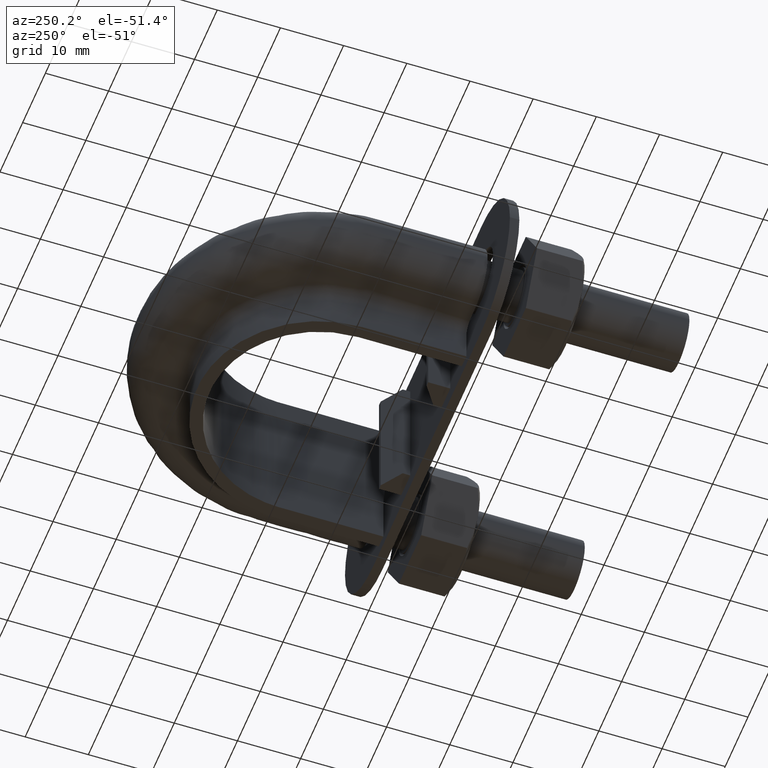
[diagram: clean part render]
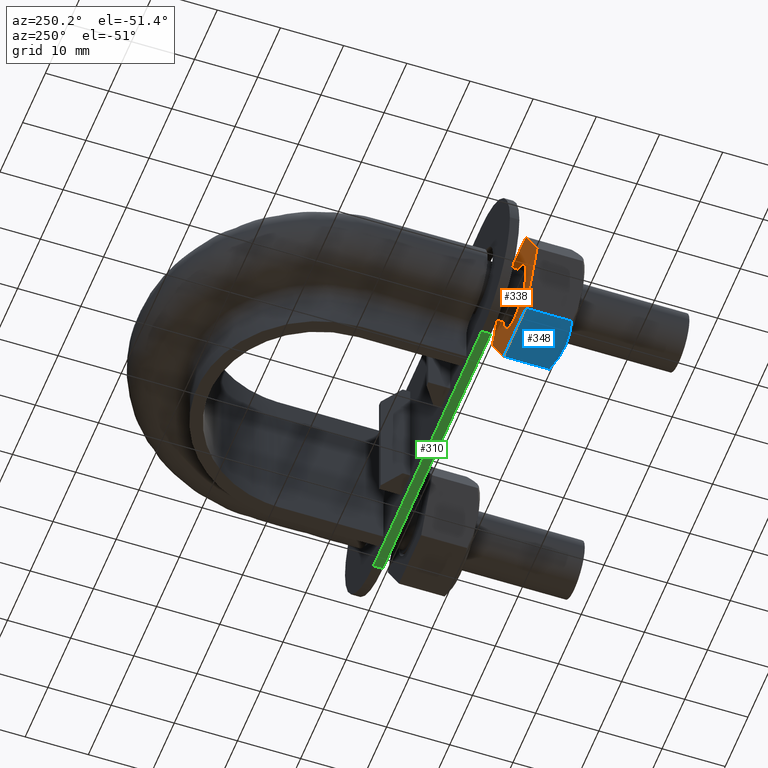
[diagram: same view with three faces highlighted in distinct colors, each labeled with its STEP entity id]
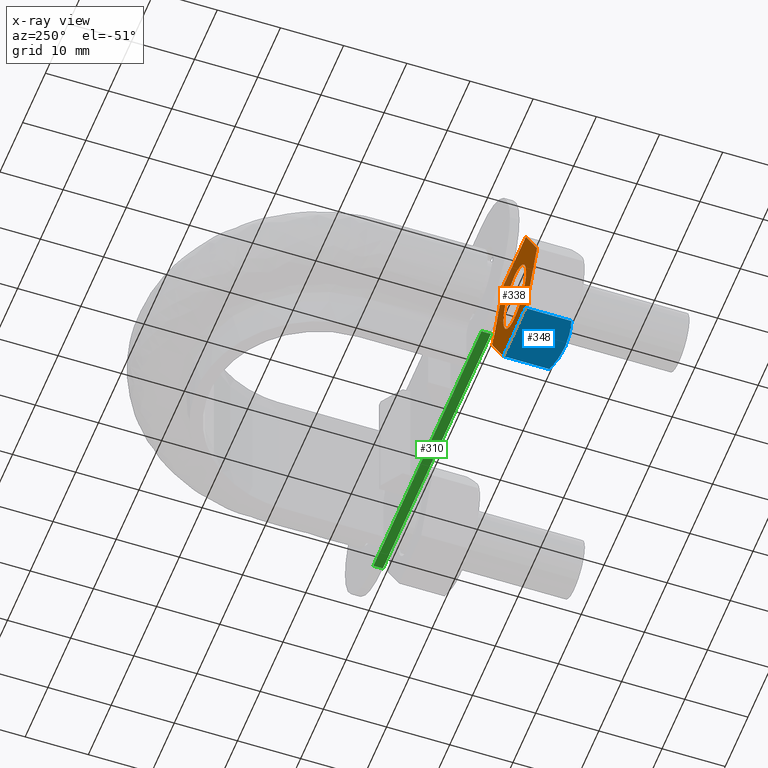
[diagram: x-ray of the same camera — body ghosted, the three highlighted faces saturated]
A machine part, auxiliary view with three faces highlighted in distinct colors.
The next image is the same camera in x-ray (body ghosted, the three faces saturated) — at least one of them is partly hidden behind the body in this view.
Their STEP definitions:

[orange] entity #338 — the highlighted planar face has unit normal (-0, -1, -0).
#338 = ADVANCED_FACE( '', ( #545, #546 ), #547, .F. );
#545 = FACE_BOUND( '', #1627, .T. );
#546 = FACE_OUTER_BOUND( '', #1628, .T. );
#547 = PLANE( '', #1629 );
#1627 = EDGE_LOOP( '', ( #2231 ) );
#1628 = EDGE_LOOP( '', ( #2232, #2233, #2234, #2235, #2236, #2237, #2238, #2239, #2240, #2241, #2242, #2243 ) );
#1629 = AXIS2_PLACEMENT_3D( '', #2244, #2245, #2246 );
#2231 = ORIENTED_EDGE( '', *, *, #2697, .F. );
#2232 = ORIENTED_EDGE( '', *, *, #2698, .T. );
#2233 = ORIENTED_EDGE( '', *, *, #2699, .T. );
#2234 = ORIENTED_EDGE( '', *, *, #2700, .T. );
#2235 = ORIENTED_EDGE( '', *, *, #2693, .T. );
#2236 = ORIENTED_EDGE( '', *, *, #2701, .T. );
#2237 = ORIENTED_EDGE( '', *, *, #2702, .T. );
#2238 = ORIENTED_EDGE( '', *, *, #2703, .T. );
#2239 = ORIENTED_EDGE( '', *, *, #2704, .T. );
#2240 = ORIENTED_EDGE( '', *, *, #2705, .T. );
#2241 = ORIENTED_EDGE( '', *, *, #2706, .T. );
#2242 = ORIENTED_EDGE( '', *, *, #2707, .T. );
#2243 = ORIENTED_EDGE( '', *, *, #2708, .T. );
#2244 = CARTESIAN_POINT( '', ( -32.7999999999996, 26.0000000000000, 8.18610159412095E-010 ) );
#2245 = DIRECTION( '', ( -2.44921270764475E-016, -1.00000000000000, -3.06151588455594E-016 ) );
#2246 = DIRECTION( '', ( 8.35309044156739E-011, -3.06151588476053E-016, 1.00000000000000 ) );
#2693 = EDGE_CURVE( '', #3034, #3032, #3035, .T. );
#2697 = EDGE_CURVE( '', #3040, #3040, #3041, .T. );
#2698 = EDGE_CURVE( '', #3042, #3043, #3044, .T. );
#2699 = EDGE_CURVE( '', #3043, #3045, #3046, .T. );
#2700 = EDGE_CURVE( '', #3045, #3034, #3047, .T. );
#2701 = EDGE_CURVE( '', #3032, #3048, #3049, .T. );
#2702 = EDGE_CURVE( '', #3048, #3050, #3051, .T. );
#2703 = EDGE_CURVE( '', #3050, #3052, #3053, .T. );
#2704 = EDGE_CURVE( '', #3052, #3054, #3055, .T. );
#2705 = EDGE_CURVE( '', #3054, #3056, #3057, .T. );
#2706 = EDGE_CURVE( '', #3056, #3058, #3059, .T. );
#2707 = EDGE_CURVE( '', #3058, #3060, #3061, .T. );
#2708 = EDGE_CURVE( '', #3060, #3042, #3062, .T. );
#3032 = VERTEX_POINT( '', #3709 );
#3034 = VERTEX_POINT( '', #3712 );
#3035 = LINE( '', #3713, #3714 );
#3040 = VERTEX_POINT( '', #3727 );
#3041 = CIRCLE( '', #3728, 5.00000000000000 );
#3042 = VERTEX_POINT( '', #3729 );
#3043 = VERTEX_POINT( '', #3730 );
#3044 = CIRCLE( '', #3731, 9.80000000000000 );
#3045 = VERTEX_POINT( '', #3732 );
#3046 = LINE( '', #3733, #3734 );
#3047 = CIRCLE( '', #3735, 9.80000000000000 );
#3048 = VERTEX_POINT( '', #3736 );
#3049 = CIRCLE( '', #3737, 9.80000000000000 );
#3050 = VERTEX_POINT( '', #3738 );
#3051 = LINE( '', #3739, #3740 );
#3052 = VERTEX_POINT( '', #3741 );
#3053 = CIRCLE( '', #3742, 9.80000000000000 );
#3054 = VERTEX_POINT( '', #3743 );
#3055 = LINE( '', #3744, #3745 );
#3056 = VERTEX_POINT( '', #3746 );
#3057 = CIRCLE( '', #3747, 9.80000000000000 );
#3058 = VERTEX_POINT( '', #3748 );
#3059 = LINE( '', #3749, #3750 );
#3060 = VERTEX_POINT( '', #3751 );
#3061 = CIRCLE( '', #3752, 9.80000000000000 );
#3062 = LINE( '', #3753, #3754 );
#3709 = CARTESIAN_POINT( '', ( -13.2000343881790, 26.0000000000000, 0.0259616470827889 ) );
#3712 = CARTESIAN_POINT( '', ( -18.0775337467760, 26.0000000000000, 8.47403835168745 ) );
#3713 = CARTESIAN_POINT( '', ( -18.0887840671230, 26.0000000000000, 8.49352447813352 ) );
#3714 = VECTOR( '', #4226, 1000.00000000001 );
#3727 = CARTESIAN_POINT( '', ( -23.0000000004177, 26.0000000000000, -4.99999999999999 ) );
#3728 = AXIS2_PLACEMENT_3D( '', #4231, #4232, #4233 );
#3729 = CARTESIAN_POINT( '', ( -27.9224662518083, 26.0000000000000, 8.47403835250981 ) );
#3730 = CARTESIAN_POINT( '', ( -27.8774993585927, 26.0000000000000, 8.50000000040743 ) );
#3731 = AXIS2_PLACEMENT_3D( '', #4234, #4235, #4236 );
#3732 = CARTESIAN_POINT( '', ( -18.1225006399873, 26.0000000000000, 8.49999999959259 ) );
#3733 = CARTESIAN_POINT( '', ( -32.7999999992896, 26.0000000000000, 8.50000000081861 ) );
#3734 = VECTOR( '', #4237, 999.999999999988 );
#3735 = AXIS2_PLACEMENT_3D( '', #4238, #4239, #4240 );
#3736 = CARTESIAN_POINT( '', ( -13.2000343881833, 26.0000000000000, -0.0259616487199740 ) );
#3737 = AXIS2_PLACEMENT_3D( '', #4241, #4242, #4243 );
#3738 = CARTESIAN_POINT( '', ( -18.0775337481917, 26.0000000000000, -8.47403835250979 ) );
#3739 = CARTESIAN_POINT( '', ( -18.0887840685419, 26.0000000000000, -8.49352447895398 ) );
#3740 = VECTOR( '', #4244, 1000.00000000001 );
#3741 = CARTESIAN_POINT( '', ( -18.1225006414073, 26.0000000000000, -8.50000000040741 ) );
#3742 = AXIS2_PLACEMENT_3D( '', #4245, #4246, #4247 );
#3743 = CARTESIAN_POINT( '', ( -27.8774993600127, 26.0000000000000, -8.49999999959257 ) );
#3744 = CARTESIAN_POINT( '', ( -32.8000000007097, 26.0000000000000, -8.49999999918139 ) );
#3745 = VECTOR( '', #4248, 999.999999999988 );
#3746 = CARTESIAN_POINT( '', ( -27.9224662532240, 26.0000000000000, -8.47403835168743 ) );
#3747 = AXIS2_PLACEMENT_3D( '', #4249, #4250, #4251 );
#3748 = CARTESIAN_POINT( '', ( -32.7999656118210, 26.0000000000000, -0.0259616470827708 ) );
#3749 = CARTESIAN_POINT( '', ( -32.8112159321679, 26.0000000000000, -0.00647552063670238 ) );
#3750 = VECTOR( '', #4252, 1000.00000000001 );
#3751 = CARTESIAN_POINT( '', ( -32.7999656118166, 26.0000000000000, 0.0259616487199859 ) );
#3752 = AXIS2_PLACEMENT_3D( '', #4253, #4254, #4255 );
#3753 = CARTESIAN_POINT( '', ( -32.8112159321668, 26.0000000000000, 0.00647552227579673 ) );
#3754 = VECTOR( '', #4256, 1000.00000000001 );
#4226 = DIRECTION( '', ( 0.499999999927647, 1.42674417659775E-016, -0.866025403826212 ) );
#4231 = CARTESIAN_POINT( '', ( -23.0000000000000, 26.0000000000000, 7.29613851974116E-015 ) );
#4232 = DIRECTION( '', ( 2.44921270764475E-016, 1.00000000000000, 3.06151588455594E-016 ) );
#4233 = DIRECTION( '', ( -8.35309044156739E-011, 3.06151588476053E-016, -1.00000000000000 ) );
#4234 = CARTESIAN_POINT( '', ( -23.0000000000000, 26.0000000000000, 7.29613851974116E-015 ) );
#4235 = DIRECTION( '', ( 2.44921270764475E-016, 1.00000000000000, 3.06151588455594E-016 ) );
#4236 = DIRECTION( '', ( -8.35309044156739E-011, 3.06151588476053E-016, -1.00000000000000 ) );
#4237 = DIRECTION( '', ( 1.00000000000000, -2.44921270738902E-016, -8.35309044156739E-011 ) );
#4238 = CARTESIAN_POINT( '', ( -23.0000000000000, 26.0000000000000, 7.29613851974116E-015 ) );
#4239 = DIRECTION( '', ( 2.44921270764475E-016, 1.00000000000000, 3.06151588455594E-016 ) );
#4240 = DIRECTION( '', ( -8.35309044156739E-011, 3.06151588476053E-016, -1.00000000000000 ) );
#4241 = CARTESIAN_POINT( '', ( -23.0000000000000, 26.0000000000000, 7.29613851974116E-015 ) );
#4242 = DIRECTION( '', ( 2.44921270764475E-016, 1.00000000000000, 3.06151588455594E-016 ) );
#4243 = DIRECTION( '', ( -8.35309044156739E-011, 3.06151588476053E-016, -1.00000000000000 ) );
#4244 = DIRECTION( '', ( -0.500000000072326, 3.87595688398671E-016, -0.866025403742681 ) );
#4245 = CARTESIAN_POINT( '', ( -23.0000000000000, 26.0000000000000, 7.29613851974116E-015 ) );
#4246 = DIRECTION( '', ( 2.44921270764475E-016, 1.00000000000000, 3.06151588455594E-016 ) );
#4247 = DIRECTION( '', ( -8.35309044156739E-011, 3.06151588476053E-016, -1.00000000000000 ) );
#4248 = DIRECTION( '', ( -1.00000000000000, 2.44921270738902E-016, 8.35309044156739E-011 ) );
#4249 = CARTESIAN_POINT( '', ( -23.0000000000000, 26.0000000000000, 7.29613851974116E-015 ) );
#4250 = DIRECTION( '', ( 2.44921270764475E-016, 1.00000000000000, 3.06151588455594E-016 ) );
#4251 = DIRECTION( '', ( -8.35309044156739E-011, 3.06151588476053E-016, -1.00000000000000 ) );
#4252 = DIRECTION( '', ( -0.499999999927647, -1.42674417659775E-016, 0.866025403826212 ) );
#4253 = CARTESIAN_POINT( '', ( -23.0000000000000, 26.0000000000000, 7.29613851974116E-015 ) );
#4254 = DIRECTION( '', ( 2.44921270764475E-016, 1.00000000000000, 3.06151588455594E-016 ) );
#4255 = DIRECTION( '', ( -8.35309044156739E-011, 3.06151588476053E-016, -1.00000000000000 ) );
#4256 = DIRECTION( '', ( 0.500000000072326, -3.87595688398671E-016, 0.866025403742681 ) );

[blue] entity #348 — the highlighted planar face has unit normal (0, -0, 1).
#348 = ADVANCED_FACE( '', ( #566 ), #567, .F. );
#566 = FACE_OUTER_BOUND( '', #1648, .T. );
#567 = PLANE( '', #1649 );
#1648 = EDGE_LOOP( '', ( #2313, #2314, #2315, #2316, #2317 ) );
#1649 = AXIS2_PLACEMENT_3D( '', #2318, #2319, #2320 );
#2313 = ORIENTED_EDGE( '', *, *, #2725, .F. );
#2314 = ORIENTED_EDGE( '', *, *, #2726, .F. );
#2315 = ORIENTED_EDGE( '', *, *, #2724, .F. );
#2316 = ORIENTED_EDGE( '', *, *, #2704, .F. );
#2317 = ORIENTED_EDGE( '', *, *, #2727, .F. );
#2318 = CARTESIAN_POINT( '', ( -18.0925227125984, 26.0000000000000, -8.50000000040992 ) );
#2319 = DIRECTION( '', ( 8.35309044156739E-011, -3.06151588476053E-016, 1.00000000000000 ) );
#2320 = DIRECTION( '', ( 2.44921270764475E-016, 1.00000000000000, 3.06151588455594E-016 ) );
#2704 = EDGE_CURVE( '', #3052, #3054, #3055, .T. );
#2724 = EDGE_CURVE( '', #3054, #3082, #3084, .F. );
#2725 = EDGE_CURVE( '', #3022, #3085, #3086, .T. );
#2726 = EDGE_CURVE( '', #3082, #3022, #3087, .T. );
#2727 = EDGE_CURVE( '', #3085, #3052, #3088, .T. );
#3022 = VERTEX_POINT( '', #3694 );
#3052 = VERTEX_POINT( '', #3741 );
#3054 = VERTEX_POINT( '', #3743 );
#3055 = LINE( '', #3744, #3745 );
#3082 = VERTEX_POINT( '', #3810 );
#3084 = LINE( '', #3812, #3813 );
#3085 = VERTEX_POINT( '', #3814 );
#3086 = B_SPLINE_CURVE_WITH_KNOTS( '', 3, ( #3815, #3816, #3817, #3818, #3819, #3820 ), .UNSPECIFIED., .F., .F., ( 4, 2, 4 ), ( 0.0156840426092173, 0.0181633795370699, 0.0206427164649225 ), .UNSPECIFIED. );
#3087 = B_SPLINE_CURVE_WITH_KNOTS( '', 3, ( #3821, #3822, #3823, #3824, #3825, #3826 ), .UNSPECIFIED., .F., .F., ( 4, 2, 4 ), ( 0.0107224888714707, 0.0132032657403440, 0.0156840426092173 ), .UNSPECIFIED. );
#3088 = LINE( '', #3827, #3828 );
#3694 = CARTESIAN_POINT( '', ( -23.0000000007100, 18.0000000000003, -8.49999999999999 ) );
#3741 = CARTESIAN_POINT( '', ( -18.1225006414073, 26.0000000000000, -8.50000000040741 ) );
#3743 = CARTESIAN_POINT( '', ( -27.8774993600127, 26.0000000000000, -8.49999999959257 ) );
#3744 = CARTESIAN_POINT( '', ( -32.8000000007097, 26.0000000000000, -8.49999999918139 ) );
#3745 = VECTOR( '', #4248, 999.999999999988 );
#3810 = CARTESIAN_POINT( '', ( -27.8774993600127, 18.7505553499468, -8.49999999959257 ) );
#3812 = CARTESIAN_POINT( '', ( -27.8774993600127, 26.0000000000000, -8.49999999959257 ) );
#3813 = VECTOR( '', #4273, 999.999999999988 );
#3814 = CARTESIAN_POINT( '', ( -18.1225006414073, 18.7505553499468, -8.50000000040742 ) );
#3815 = CARTESIAN_POINT( '', ( -23.0000000007100, 18.0000000000004, -8.49999999999999 ) );
#3816 = CARTESIAN_POINT( '', ( -22.1654059598382, 18.0000000000004, -8.50000000006971 ) );
#3817 = CARTESIAN_POINT( '', ( -21.3409017275085, 18.0723104611267, -8.50000000013858 ) );
#3818 = CARTESIAN_POINT( '', ( -19.7171925777506, 18.3339943747737, -8.50000000027421 ) );
#3819 = CARTESIAN_POINT( '', ( -18.9161421884830, 18.5225028103097, -8.50000000034112 ) );
#3820 = CARTESIAN_POINT( '', ( -18.1225006414073, 18.7505553499469, -8.50000000040742 ) );
#3821 = CARTESIAN_POINT( '', ( -27.8774993600127, 18.7505553499469, -8.49999999959257 ) );
#3822 = CARTESIAN_POINT( '', ( -27.0828739336509, 18.5222200930418, -8.49999999965895 ) );
#3823 = CARTESIAN_POINT( '', ( -26.2812026230338, 18.3336547117177, -8.49999999972592 ) );
#3824 = CARTESIAN_POINT( '', ( -24.6573811701561, 18.0721149177821, -8.49999999986155 ) );
#3825 = CARTESIAN_POINT( '', ( -23.8350787543215, 18.0000000000004, -8.49999999993024 ) );
#3826 = CARTESIAN_POINT( '', ( -23.0000000007100, 18.0000000000004, -8.49999999999999 ) );
#3827 = CARTESIAN_POINT( '', ( -18.1225006414073, 26.0000000000000, -8.50000000040741 ) );
#3828 = VECTOR( '', #4274, 999.999999999988 );
#4248 = DIRECTION( '', ( -1.00000000000000, 2.44921270738902E-016, 8.35309044156739E-011 ) );
#4273 = DIRECTION( '', ( 2.44921270764475E-016, 1.00000000000000, 3.06151588455594E-016 ) );
#4274 = DIRECTION( '', ( 2.44921270764475E-016, 1.00000000000000, 3.06151588455594E-016 ) );

[green] entity #310 — the highlighted planar face has unit normal (-0, -0, -1).
#310 = ADVANCED_FACE( '', ( #486 ), #487, .T. );
#486 = FACE_OUTER_BOUND( '', #1568, .T. );
#487 = PLANE( '', #1569 );
#1568 = EDGE_LOOP( '', ( #2031, #2032, #2033, #2034 ) );
#1569 = AXIS2_PLACEMENT_3D( '', #2035, #2036, #2037 );
#2031 = ORIENTED_EDGE( '', *, *, #2632, .F. );
#2032 = ORIENTED_EDGE( '', *, *, #2649, .F. );
#2033 = ORIENTED_EDGE( '', *, *, #2599, .T. );
#2034 = ORIENTED_EDGE( '', *, *, #2647, .T. );
#2035 = CARTESIAN_POINT( '', ( 22.9999999989559, 30.3000000000002, -12.5000000019212 ) );
#2036 = DIRECTION( '', ( -8.35308489044844E-011, -1.57436294265123E-014, -1.00000000000000 ) );
#2037 = DIRECTION( '', ( 1.00000000000000, 1.69669920831401E-014, -8.35308489044844E-011 ) );
#2599 = EDGE_CURVE( '', #2876, #2874, #2877, .T. );
#2632 = EDGE_CURVE( '', #2934, #2936, #2937, .T. );
#2647 = EDGE_CURVE( '', #2874, #2936, #2961, .T. );
#2649 = EDGE_CURVE( '', #2876, #2934, #2964, .T. );
#2874 = VERTEX_POINT( '', #3466 );
#2876 = VERTEX_POINT( '', #3468 );
#2877 = LINE( '', #3469, #3470 );
#2934 = VERTEX_POINT( '', #3551 );
#2936 = VERTEX_POINT( '', #3553 );
#2937 = LINE( '', #3554, #3555 );
#2961 = LINE( '', #3589, #3590 );
#2964 = LINE( '', #3593, #3594 );
#3466 = CARTESIAN_POINT( '', ( -24.5000000010441, 30.2999999999994, -12.4999999979535 ) );
#3468 = CARTESIAN_POINT( '', ( 22.9999999989559, 30.3000000000002, -12.5000000019212 ) );
#3469 = CARTESIAN_POINT( '', ( 22.9999999989559, 30.3000000000002, -12.5000000019212 ) );
#3470 = VECTOR( '', #4091, 1000.00000000000 );
#3551 = CARTESIAN_POINT( '', ( 22.9999999989559, 31.8000000000002, -12.5000000019212 ) );
#3553 = CARTESIAN_POINT( '', ( -24.5000000010441, 31.7999999999994, -12.4999999979535 ) );
#3554 = CARTESIAN_POINT( '', ( 22.9999999989559, 31.8000000000002, -12.5000000019212 ) );
#3555 = VECTOR( '', #4140, 1000.00000000000 );
#3589 = CARTESIAN_POINT( '', ( -24.5000000010441, 30.2999999999994, -12.4999999979535 ) );
#3590 = VECTOR( '', #4163, 1000.00000000000 );
#3593 = CARTESIAN_POINT( '', ( 22.9999999989559, 30.3000000000002, -12.5000000019212 ) );
#3594 = VECTOR( '', #4167, 1000.00000000000 );
#4091 = DIRECTION( '', ( -1.00000000000000, -1.69669920831401E-014, 8.35308489044844E-011 ) );
#4140 = DIRECTION( '', ( -1.00000000000000, -1.69669920831401E-014, 8.35308489044844E-011 ) );
#4163 = DIRECTION( '', ( -1.69669920844552E-014, 1.00000000000000, -1.57436294250950E-014 ) );
#4167 = DIRECTION( '', ( -1.69669920844552E-014, 1.00000000000000, -1.57436294250950E-014 ) );